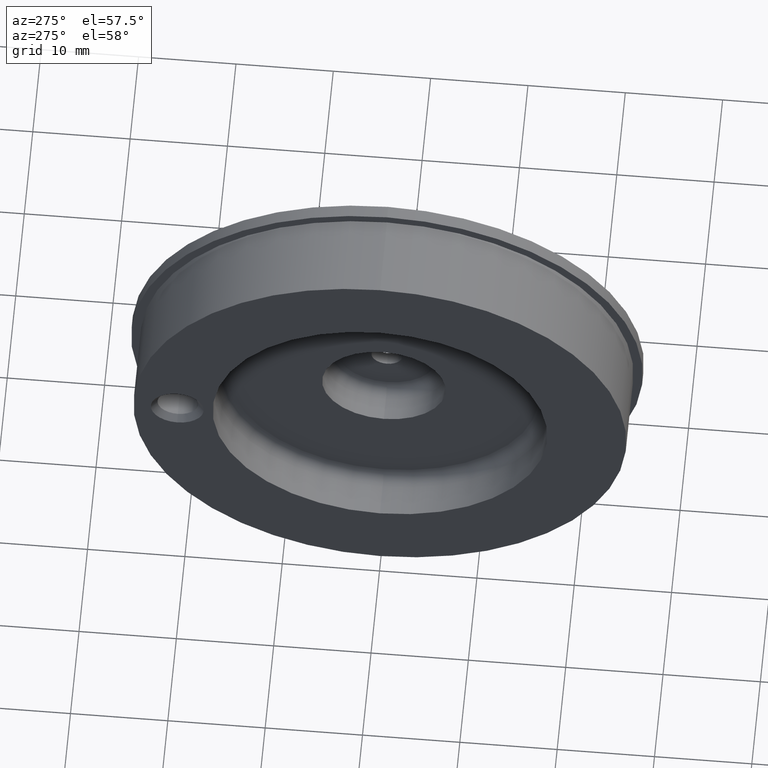
[diagram: clean part render]
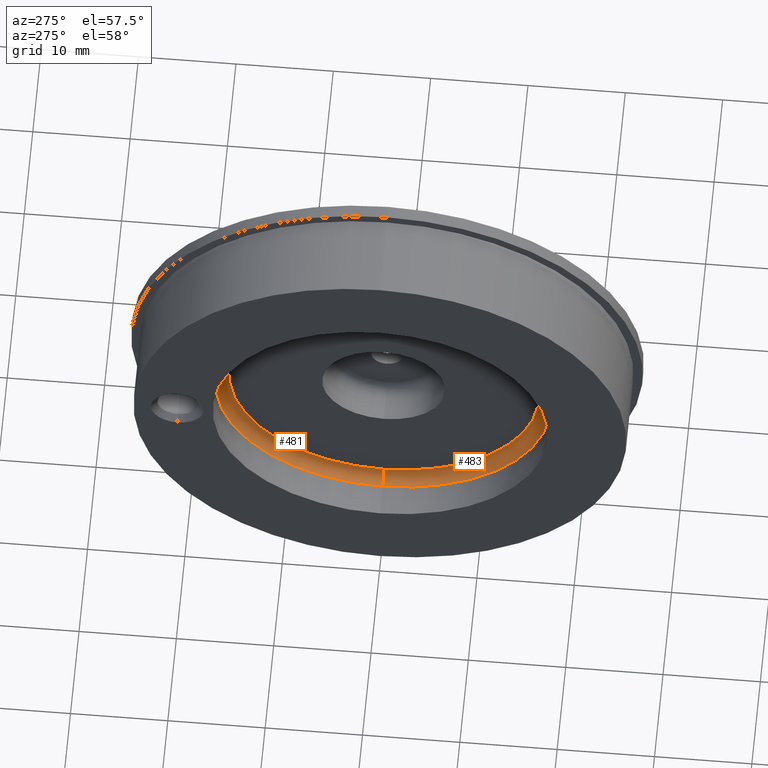
[diagram: same view with one multi-face feature highlighted, each face labeled with its STEP entity id]
A machine part, auxiliary view. The highlighted faces form ONE feature: a constant-radius fillet chain: 2 tangent blend faces with common blend radius 1.27 mm. The faces share edges in the B-rep.
Their STEP definitions:
[1] entity #483 (Torus):
#5 = DIRECTION ( 'NONE',  ( 0.0000000000000000000, 1.000000000000000000, -1.224646799147353200E-016 ) ) ;
#31 = CARTESIAN_POINT ( 'NONE',  ( -0.1950000000000000300, 0.0000000000000000000, 0.0000000000000000000 ) ) ;
#36 = DIRECTION ( 'NONE',  ( -0.0000000000000000000, -1.000000000000000000, -0.0000000000000000000 ) ) ;
#78 = DIRECTION ( 'NONE',  ( 1.000000000000000000, -0.0000000000000000000, -0.0000000000000000000 ) ) ;
#118 = DIRECTION ( 'NONE',  ( 0.0000000000000000000, 1.224646799147351700E-016, 1.000000000000000000 ) ) ;
#120 = CARTESIAN_POINT ( 'NONE',  ( -0.2450000000000000200, 7.678535430653906100E-017, 0.6270000000000002200 ) ) ;
#124 = DIRECTION ( 'NONE',  ( 0.0000000000000000000, 0.0000000000000000000, -1.000000000000000000 ) ) ;
#134 = CARTESIAN_POINT ( 'NONE',  ( -0.2450000000000000200, 0.0000000000000000000, 0.0000000000000000000 ) ) ;
#141 = DIRECTION ( 'NONE',  ( 1.000000000000000000, -0.0000000000000000000, -0.0000000000000000000 ) ) ;
#149 = DIRECTION ( 'NONE',  ( 0.0000000000000000000, 0.0000000000000000000, -1.000000000000000000 ) ) ;
#162 = DIRECTION ( 'NONE',  ( 0.0000000000000000000, 0.0000000000000000000, -1.000000000000000000 ) ) ;
#179 = CARTESIAN_POINT ( 'NONE',  ( -0.2450000000000000200, 0.0000000000000000000, -0.6270000000000002200 ) ) ;
#204 = ORIENTED_EDGE ( 'NONE', *, *, #629, .F. ) ;
#219 = ORIENTED_EDGE ( 'NONE', *, *, #599, .F. ) ;
#238 = CIRCLE ( 'NONE', #521, 0.05000000000000001000 ) ;
#262 = CIRCLE ( 'NONE', #523, 0.05000000000000001000 ) ;
#285 = CIRCLE ( 'NONE', #533, 0.6270000000000002200 ) ;
#300 = VERTEX_POINT ( 'NONE', #700 ) ;
#306 = FACE_OUTER_BOUND ( 'NONE', #413, .T. ) ;
#343 = VERTEX_POINT ( 'NONE', #736 ) ;
#372 = VERTEX_POINT ( 'NONE', #666 ) ;
#404 = VERTEX_POINT ( 'NONE', #715 ) ;
#411 = CIRCLE ( 'NONE', #544, 0.6770000000000000500 ) ;
#413 = EDGE_LOOP ( 'NONE', ( #219, #441, #428, #204 ) ) ;
#428 = ORIENTED_EDGE ( 'NONE', *, *, #571, .T. ) ;
#438 = TOROIDAL_SURFACE ( 'NONE', #596, 0.6270000000000002200, 0.04999999999999996100 ) ;
#441 = ORIENTED_EDGE ( 'NONE', *, *, #607, .T. ) ;
#483 = ADVANCED_FACE ( 'NONE', ( #306 ), #438, .F. ) ;
#521 = AXIS2_PLACEMENT_3D ( 'NONE', #179, #36, #124 ) ;
#523 = AXIS2_PLACEMENT_3D ( 'NONE', #120, #5, #118 ) ;
#533 = AXIS2_PLACEMENT_3D ( 'NONE', #31, #78, #149 ) ;
#544 = AXIS2_PLACEMENT_3D ( 'NONE', #134, #141, #162 ) ;
#571 = EDGE_CURVE ( 'NONE', #404, #300, #285, .T. ) ;
#596 = AXIS2_PLACEMENT_3D ( 'NONE', #671, #678, #701 ) ;
#599 = EDGE_CURVE ( 'NONE', #372, #343, #411, .T. ) ;
#607 = EDGE_CURVE ( 'NONE', #372, #404, #262, .T. ) ;
#629 = EDGE_CURVE ( 'NONE', #343, #300, #238, .T. ) ;
#666 = CARTESIAN_POINT ( 'NONE',  ( -0.2450000000000000200, 8.290858830227582600E-017, 0.6770000000000001600 ) ) ;
#671 = CARTESIAN_POINT ( 'NONE',  ( -0.2450000000000000200, 0.0000000000000000000, 0.0000000000000000000 ) ) ;
#678 = DIRECTION ( 'NONE',  ( 1.000000000000000000, -0.0000000000000000000, -0.0000000000000000000 ) ) ;
#700 = CARTESIAN_POINT ( 'NONE',  ( -0.1950000000000000300, 0.0000000000000000000, -0.6270000000000002200 ) ) ;
#701 = DIRECTION ( 'NONE',  ( 0.0000000000000000000, 0.0000000000000000000, -1.000000000000000000 ) ) ;
#715 = CARTESIAN_POINT ( 'NONE',  ( -0.1950000000000000300, 7.984697130440743700E-017, 0.6270000000000002200 ) ) ;
#736 = CARTESIAN_POINT ( 'NONE',  ( -0.2450000000000000200, 0.0000000000000000000, -0.6770000000000001600 ) ) ;
[2] entity #481 (Torus):
#5 = DIRECTION ( 'NONE',  ( 0.0000000000000000000, 1.000000000000000000, -1.224646799147353200E-016 ) ) ;
#9 = DIRECTION ( 'NONE',  ( 0.0000000000000000000, 0.0000000000000000000, -1.000000000000000000 ) ) ;
#35 = CARTESIAN_POINT ( 'NONE',  ( -0.1950000000000000300, 0.0000000000000000000, 0.0000000000000000000 ) ) ;
#36 = DIRECTION ( 'NONE',  ( -0.0000000000000000000, -1.000000000000000000, -0.0000000000000000000 ) ) ;
#73 = DIRECTION ( 'NONE',  ( 0.0000000000000000000, 0.0000000000000000000, -1.000000000000000000 ) ) ;
#109 = DIRECTION ( 'NONE',  ( 1.000000000000000000, -0.0000000000000000000, -0.0000000000000000000 ) ) ;
#118 = DIRECTION ( 'NONE',  ( 0.0000000000000000000, 1.224646799147351700E-016, 1.000000000000000000 ) ) ;
#120 = CARTESIAN_POINT ( 'NONE',  ( -0.2450000000000000200, 7.678535430653906100E-017, 0.6270000000000002200 ) ) ;
#124 = DIRECTION ( 'NONE',  ( 0.0000000000000000000, 0.0000000000000000000, -1.000000000000000000 ) ) ;
#126 = DIRECTION ( 'NONE',  ( 1.000000000000000000, -0.0000000000000000000, -0.0000000000000000000 ) ) ;
#157 = CARTESIAN_POINT ( 'NONE',  ( -0.2450000000000000200, 0.0000000000000000000, 0.0000000000000000000 ) ) ;
#179 = CARTESIAN_POINT ( 'NONE',  ( -0.2450000000000000200, 0.0000000000000000000, -0.6270000000000002200 ) ) ;
#238 = CIRCLE ( 'NONE', #521, 0.05000000000000001000 ) ;
#240 = ORIENTED_EDGE ( 'NONE', *, *, #629, .T. ) ;
#244 = CIRCLE ( 'NONE', #551, 0.6270000000000002200 ) ;
#262 = CIRCLE ( 'NONE', #523, 0.05000000000000001000 ) ;
#282 = TOROIDAL_SURFACE ( 'NONE', #598, 0.6270000000000002200, 0.04999999999999996100 ) ;
#292 = ORIENTED_EDGE ( 'NONE', *, *, #624, .T. ) ;
#300 = VERTEX_POINT ( 'NONE', #700 ) ;
#343 = VERTEX_POINT ( 'NONE', #736 ) ;
#348 = EDGE_LOOP ( 'NONE', ( #464, #454, #240, #292 ) ) ;
#372 = VERTEX_POINT ( 'NONE', #666 ) ;
#392 = CIRCLE ( 'NONE', #538, 0.6770000000000000500 ) ;
#404 = VERTEX_POINT ( 'NONE', #715 ) ;
#431 = FACE_OUTER_BOUND ( 'NONE', #348, .T. ) ;
#454 = ORIENTED_EDGE ( 'NONE', *, *, #583, .F. ) ;
#464 = ORIENTED_EDGE ( 'NONE', *, *, #607, .F. ) ;
#481 = ADVANCED_FACE ( 'NONE', ( #431 ), #282, .F. ) ;
#521 = AXIS2_PLACEMENT_3D ( 'NONE', #179, #36, #124 ) ;
#523 = AXIS2_PLACEMENT_3D ( 'NONE', #120, #5, #118 ) ;
#538 = AXIS2_PLACEMENT_3D ( 'NONE', #157, #126, #73 ) ;
#551 = AXIS2_PLACEMENT_3D ( 'NONE', #35, #109, #9 ) ;
#583 = EDGE_CURVE ( 'NONE', #343, #372, #392, .T. ) ;
#598 = AXIS2_PLACEMENT_3D ( 'NONE', #645, #665, #694 ) ;
#607 = EDGE_CURVE ( 'NONE', #372, #404, #262, .T. ) ;
#624 = EDGE_CURVE ( 'NONE', #300, #404, #244, .T. ) ;
#629 = EDGE_CURVE ( 'NONE', #343, #300, #238, .T. ) ;
#645 = CARTESIAN_POINT ( 'NONE',  ( -0.2450000000000000200, 0.0000000000000000000, 0.0000000000000000000 ) ) ;
#665 = DIRECTION ( 'NONE',  ( 1.000000000000000000, -0.0000000000000000000, -0.0000000000000000000 ) ) ;
#666 = CARTESIAN_POINT ( 'NONE',  ( -0.2450000000000000200, 8.290858830227582600E-017, 0.6770000000000001600 ) ) ;
#694 = DIRECTION ( 'NONE',  ( 0.0000000000000000000, 0.0000000000000000000, -1.000000000000000000 ) ) ;
#700 = CARTESIAN_POINT ( 'NONE',  ( -0.1950000000000000300, 0.0000000000000000000, -0.6270000000000002200 ) ) ;
#715 = CARTESIAN_POINT ( 'NONE',  ( -0.1950000000000000300, 7.984697130440743700E-017, 0.6270000000000002200 ) ) ;
#736 = CARTESIAN_POINT ( 'NONE',  ( -0.2450000000000000200, 0.0000000000000000000, -0.6770000000000001600 ) ) ;